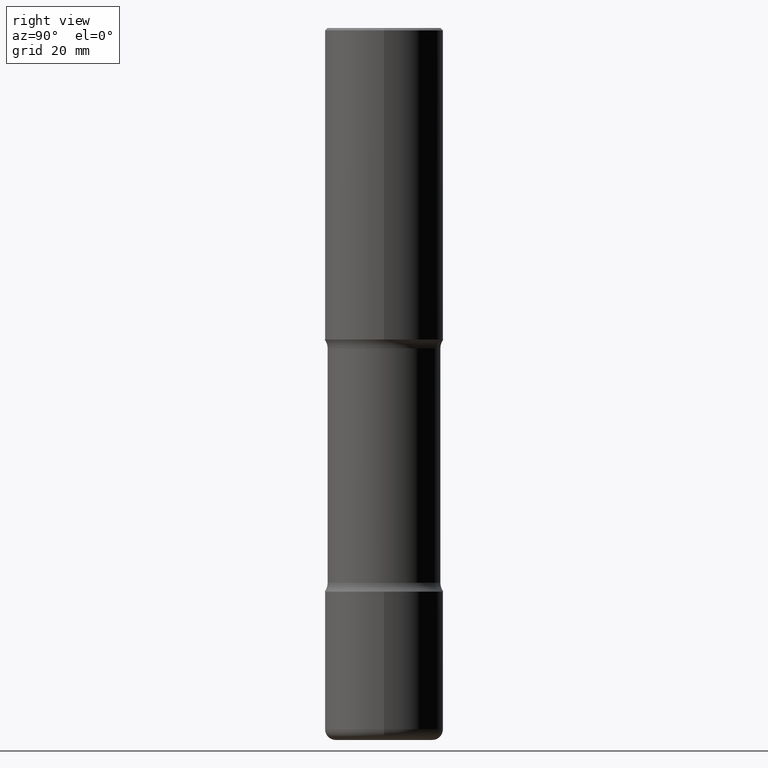
[diagram: clean part render]
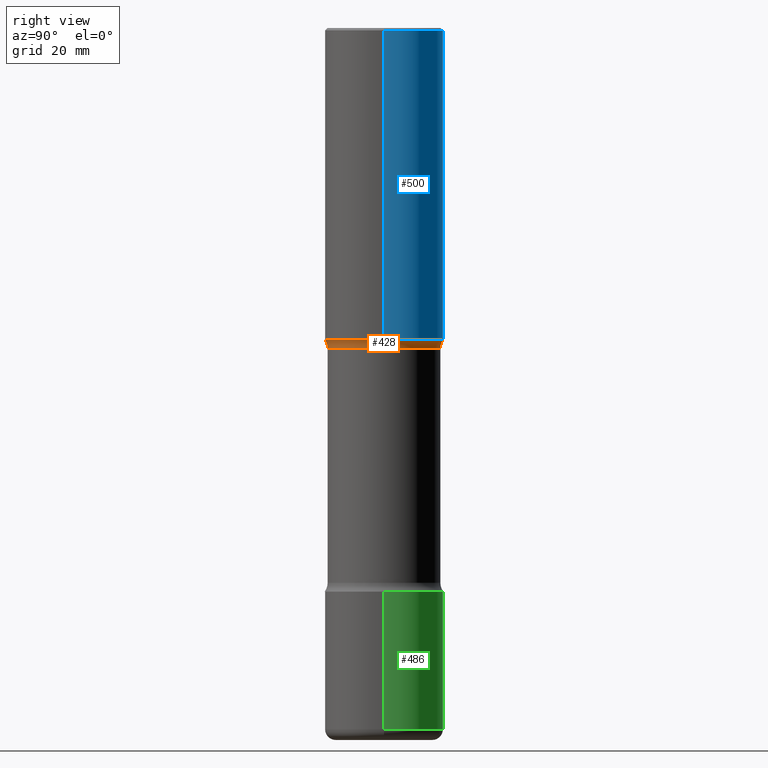
[diagram: same view with three faces highlighted in distinct colors, each labeled with its STEP entity id]
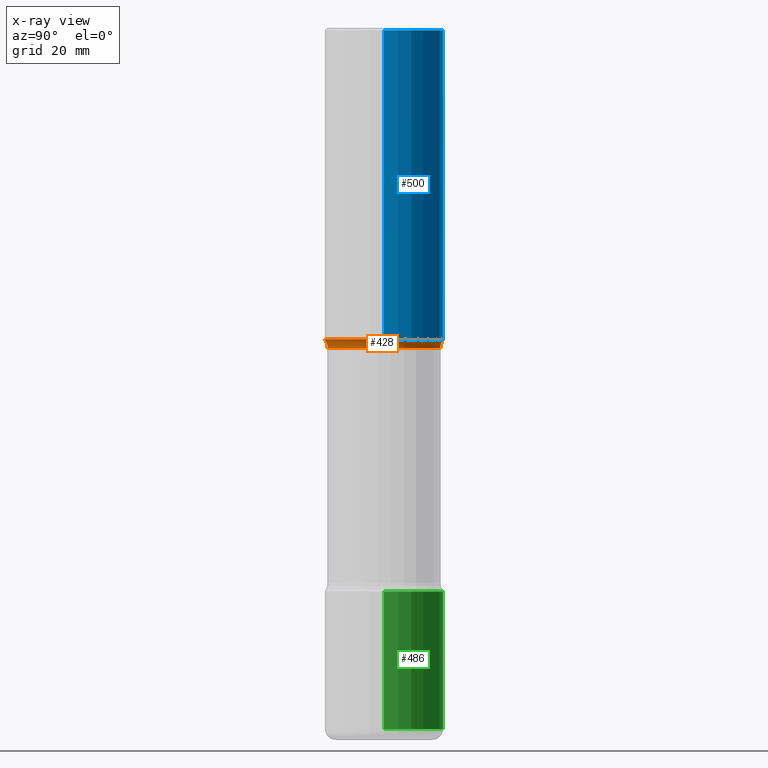
[diagram: x-ray of the same camera — body ghosted, the three highlighted faces saturated]
A machine part, right view with three faces highlighted in distinct colors.
The next image is the same camera in x-ray (body ghosted, the three faces saturated) — at least one of them is partly hidden behind the body in this view.
Their STEP definitions:

[orange] entity #428 — the highlighted toroidal blend (fillet) surface has major radius 15.24 mm and minor (blend) radius 3.175 mm.
#5 = VERTEX_POINT ( 'NONE', #531 ) ;
#37 = FACE_OUTER_BOUND ( 'NONE', #248, .T. ) ;
#48 = EDGE_CURVE ( 'NONE', #377, #5, #274, .T. ) ;
#80 = DIRECTION ( 'NONE',  ( 1.000000000000000000, -6.860497997771530774E-15, 4.842169013103094469E-29 ) ) ;
#82 = VERTEX_POINT ( 'NONE', #493 ) ;
#117 = CARTESIAN_POINT ( 'NONE',  ( -4.116298798662853620E-15, -0.6000000000000096367, -2.699999999999999734 ) ) ;
#135 = DIRECTION ( 'NONE',  ( 2.523594115079346016E-29, -3.379601449890201278E-15, -1.000000000000000000 ) ) ;
#162 = ORIENTED_EDGE ( 'NONE', *, *, #368, .T. ) ;
#190 = DIRECTION ( 'NONE',  ( 6.982962677686266711E-15, 1.000000000000000000, -3.278217592397112312E-15 ) ) ;
#199 = CARTESIAN_POINT ( 'NONE',  ( 6.459692832343351385E-29, -9.631888214401318406E-15, -2.700000000000001954 ) ) ;
#208 = DIRECTION ( 'NONE',  ( 6.982962677686265133E-15, 1.000000000000000000, -3.450755360418016739E-15 ) ) ;
#218 = AXIS2_PLACEMENT_3D ( 'NONE', #117, #80, #292 ) ;
#236 = CARTESIAN_POINT ( 'NONE',  ( 6.253339334835791142E-29, -9.402883278488267648E-15, -2.625000000000000888 ) ) ;
#246 = AXIS2_PLACEMENT_3D ( 'NONE', #485, #135, #208 ) ;
#248 = EDGE_LOOP ( 'NONE', ( #495, #503, #162, #443 ) ) ;
#274 = CIRCLE ( 'NONE', #329, 0.5000000000000005551 ) ;
#283 = CIRCLE ( 'NONE', #419, 0.1249999999999999584 ) ;
#292 = DIRECTION ( 'NONE',  ( 6.860497997771532351E-15, 1.000000000000000000, 0.000000000000000000 ) ) ;
#293 = CARTESIAN_POINT ( 'NONE',  ( 4.189777606611823924E-15, 0.5999999999999903189, -2.700000000000004174 ) ) ;
#301 = VERTEX_POINT ( 'NONE', #514 ) ;
#323 = DIRECTION ( 'NONE',  ( 2.523594115079346016E-29, -3.379601449890201278E-15, -1.000000000000000000 ) ) ;
#329 = AXIS2_PLACEMENT_3D ( 'NONE', #236, #323, #190 ) ;
#330 = AXIS2_PLACEMENT_3D ( 'NONE', #199, #381, #340 ) ;
#340 = DIRECTION ( 'NONE',  ( 6.982962677686265133E-15, 1.000000000000000000, -3.379601449890201672E-15 ) ) ;
#359 = CIRCLE ( 'NONE', #246, 0.4749999999999999778 ) ;
#361 = DIRECTION ( 'NONE',  ( -6.982962677686265133E-15, -1.000000000000000000, 0.000000000000000000 ) ) ;
#368 = EDGE_CURVE ( 'NONE', #82, #377, #283, .T. ) ;
#377 = VERTEX_POINT ( 'NONE', #473 ) ;
#381 = DIRECTION ( 'NONE',  ( 2.523594115079346016E-29, -3.379601449890201278E-15, -1.000000000000000000 ) ) ;
#419 = AXIS2_PLACEMENT_3D ( 'NONE', #293, #471, #361 ) ;
#422 = EDGE_CURVE ( 'NONE', #82, #301, #359, .T. ) ;
#428 = ADVANCED_FACE ( 'NONE', ( #37 ), #497, .F. ) ;
#443 = ORIENTED_EDGE ( 'NONE', *, *, #48, .T. ) ;
#462 = CIRCLE ( 'NONE', #218, 0.1249999999999999584 ) ;
#471 = DIRECTION ( 'NONE',  ( -1.000000000000000000, 6.982962677686265922E-15, -4.883557194083112340E-29 ) ) ;
#473 = CARTESIAN_POINT ( 'NONE',  ( 3.491481338843199225E-15, 0.4999999999999911182, -2.625000000000002665 ) ) ;
#485 = CARTESIAN_POINT ( 'NONE',  ( 6.442608893466743677E-29, -9.656353387230035032E-15, -2.700000000000001954 ) ) ;
#493 = CARTESIAN_POINT ( 'NONE',  ( 3.316907271901040585E-15, 0.4749999999999903744, -2.700000000000003286 ) ) ;
#495 = ORIENTED_EDGE ( 'NONE', *, *, #496, .F. ) ;
#496 = EDGE_CURVE ( 'NONE', #301, #5, #462, .T. ) ;
#497 = TOROIDAL_SURFACE ( 'NONE', #330, 0.5999999999999999778, 0.1249999999999999584 ) ;
#503 = ORIENTED_EDGE ( 'NONE', *, *, #422, .F. ) ;
#514 = CARTESIAN_POINT ( 'NONE',  ( -3.344492773913559396E-15, -0.4750000000000096367, -2.700000000000000178 ) ) ;
#531 = CARTESIAN_POINT ( 'NONE',  ( -3.430248998885706617E-15, -0.5000000000000099920, -2.624999999999999556 ) ) ;

[blue] entity #500 — the highlighted cylindrical surface (partial cylindrical patch) has radius 12.7 mm, axis along (-0, 0, 1).
#11 = VECTOR ( 'NONE', #216, 39.37007874015748143 ) ;
#21 = EDGE_CURVE ( 'NONE', #320, #239, #315, .T. ) ;
#36 = DIRECTION ( 'NONE',  ( 1.000000000000000000, -6.982962677686264344E-15, 0.000000000000000000 ) ) ;
#51 = VERTEX_POINT ( 'NONE', #74 ) ;
#53 = CARTESIAN_POINT ( 'NONE',  ( -0.5000000000000002220, 3.552713678800502507E-15, -2.459467545127454012E-29 ) ) ;
#74 = CARTESIAN_POINT ( 'NONE',  ( 0.5000000000000004441, -1.265661985330638997E-14, -2.624999999999999556 ) ) ;
#79 = ORIENTED_EDGE ( 'NONE', *, *, #342, .T. ) ;
#116 = DIRECTION ( 'NONE',  ( -2.445468806185136597E-29, 3.491481338843145583E-15, 1.000000000000000000 ) ) ;
#129 = ORIENTED_EDGE ( 'NONE', *, *, #157, .T. ) ;
#130 = CARTESIAN_POINT ( 'NONE',  ( 0.000000000000000000, 0.000000000000000000, 0.000000000000000000 ) ) ;
#132 = EDGE_LOOP ( 'NONE', ( #129, #79, #148, #287 ) ) ;
#148 = ORIENTED_EDGE ( 'NONE', *, *, #21, .F. ) ;
#157 = EDGE_CURVE ( 'NONE', #51, #433, #409, .T. ) ;
#165 = LINE ( 'NONE', #53, #11 ) ;
#184 = EDGE_CURVE ( 'NONE', #51, #320, #296, .T. ) ;
#213 = CARTESIAN_POINT ( 'NONE',  ( -0.5000000000000004441, -1.064770391819553504E-15, -2.624999999999999556 ) ) ;
#216 = DIRECTION ( 'NONE',  ( -2.445468806185136877E-29, 3.491481338843145188E-15, 1.000000000000000000 ) ) ;
#239 = VERTEX_POINT ( 'NONE', #448 ) ;
#250 = CARTESIAN_POINT ( 'NONE',  ( 0.5000000000000002220, -3.491481338843134933E-15, 2.438088387897969017E-29 ) ) ;
#287 = ORIENTED_EDGE ( 'NONE', *, *, #184, .F. ) ;
#296 = LINE ( 'NONE', #250, #347 ) ;
#297 = CYLINDRICAL_SURFACE ( 'NONE', #474, 0.5000000000000002220 ) ;
#304 = CARTESIAN_POINT ( 'NONE',  ( 0.5000000000000000000, -3.500078625662629079E-15, -0.02000000000000010103 ) ) ;
#309 = AXIS2_PLACEMENT_3D ( 'NONE', #548, #325, #542 ) ;
#315 = CIRCLE ( 'NONE', #309, 0.5000000000000000000 ) ;
#320 = VERTEX_POINT ( 'NONE', #304 ) ;
#325 = DIRECTION ( 'NONE',  ( -2.445468806185136597E-29, 3.491481338843145583E-15, 1.000000000000000000 ) ) ;
#342 = EDGE_CURVE ( 'NONE', #433, #239, #165, .T. ) ;
#347 = VECTOR ( 'NONE', #434, 39.37007874015748143 ) ;
#376 = CARTESIAN_POINT ( 'NONE',  ( 6.419355616235982445E-29, -9.165138514463255034E-15, -2.624999999999999556 ) ) ;
#399 = FACE_OUTER_BOUND ( 'NONE', #132, .T. ) ;
#409 = CIRCLE ( 'NONE', #516, 0.5000000000000004441 ) ;
#433 = VERTEX_POINT ( 'NONE', #213 ) ;
#434 = DIRECTION ( 'NONE',  ( -2.445468806185136877E-29, 3.491481338843145188E-15, 1.000000000000000000 ) ) ;
#435 = DIRECTION ( 'NONE',  ( 1.000000000000000000, -6.982962677686266711E-15, 4.876176775795935793E-29 ) ) ;
#448 = CARTESIAN_POINT ( 'NONE',  ( -0.5000000000000000000, 3.421651712066270057E-15, -0.02000000000000010103 ) ) ;
#474 = AXIS2_PLACEMENT_3D ( 'NONE', #130, #512, #435 ) ;
#500 = ADVANCED_FACE ( 'NONE', ( #399 ), #297, .T. ) ;
#512 = DIRECTION ( 'NONE',  ( -2.445468806185136597E-29, 3.491481338843145583E-15, 1.000000000000000000 ) ) ;
#516 = AXIS2_PLACEMENT_3D ( 'NONE', #376, #116, #36 ) ;
#542 = DIRECTION ( 'NONE',  ( 1.000000000000000000, -6.982962677686266711E-15, 0.000000000000000000 ) ) ;
#548 = CARTESIAN_POINT ( 'NONE',  ( 4.890937612370298557E-31, -6.982962677686327354E-17, -0.02000000000000010103 ) ) ;

[green] entity #486 — the highlighted cylindrical surface (partial cylindrical patch) has radius 12.7 mm, axis along (-0, 0, 1).
#6 = DIRECTION ( 'NONE',  ( -2.445468806185136597E-29, 3.491481338843145583E-15, 1.000000000000000000 ) ) ;
#41 = VERTEX_POINT ( 'NONE', #72 ) ;
#72 = CARTESIAN_POINT ( 'NONE',  ( 0.5000000000000002220, -2.007601769834807990E-14, -4.750000000000000888 ) ) ;
#75 = VERTEX_POINT ( 'NONE', #280 ) ;
#94 = DIRECTION ( 'NONE',  ( -2.445468806185136877E-29, 3.491481338843145188E-15, 1.000000000000000000 ) ) ;
#96 = CARTESIAN_POINT ( 'NONE',  ( -0.5000000000000004441, 3.552713678800504085E-15, -2.459467545127455133E-29 ) ) ;
#111 = AXIS2_PLACEMENT_3D ( 'NONE', #355, #6, #163 ) ;
#118 = DIRECTION ( 'NONE',  ( 1.000000000000000000, -6.982962677686264344E-15, 0.000000000000000000 ) ) ;
#119 = EDGE_LOOP ( 'NONE', ( #461, #192, #423, #288 ) ) ;
#131 = DIRECTION ( 'NONE',  ( 1.000000000000000000, -6.982962677686267499E-15, 0.000000000000000000 ) ) ;
#161 = CIRCLE ( 'NONE', #270, 0.5000000000000002220 ) ;
#163 = DIRECTION ( 'NONE',  ( 1.000000000000000000, -6.982962677686266711E-15, 4.876176775795935232E-29 ) ) ;
#192 = ORIENTED_EDGE ( 'NONE', *, *, #326, .T. ) ;
#222 = CARTESIAN_POINT ( 'NONE',  ( 1.445272064455415343E-28, -2.063465471256298629E-14, -5.909999999999999254 ) ) ;
#224 = VECTOR ( 'NONE', #264, 39.37007874015748143 ) ;
#264 = DIRECTION ( 'NONE',  ( -2.445468806185136877E-29, 3.491481338843145188E-15, 1.000000000000000000 ) ) ;
#270 = AXIS2_PLACEMENT_3D ( 'NONE', #349, #290, #131 ) ;
#280 = CARTESIAN_POINT ( 'NONE',  ( 0.5000000000000002220, -2.412613605140612280E-14, -5.909999999999999254 ) ) ;
#281 = VERTEX_POINT ( 'NONE', #308 ) ;
#286 = EDGE_CURVE ( 'NONE', #75, #41, #482, .T. ) ;
#288 = ORIENTED_EDGE ( 'NONE', *, *, #286, .F. ) ;
#290 = DIRECTION ( 'NONE',  ( -2.445468806185136597E-29, 3.491481338843145583E-15, 1.000000000000000000 ) ) ;
#302 = EDGE_CURVE ( 'NONE', #41, #281, #161, .T. ) ;
#308 = CARTESIAN_POINT ( 'NONE',  ( -0.5000000000000002220, -1.505688185723346233E-14, -4.750000000000000888 ) ) ;
#310 = CIRCLE ( 'NONE', #394, 0.5000000000000004441 ) ;
#316 = VECTOR ( 'NONE', #94, 39.37007874015748143 ) ;
#326 = EDGE_CURVE ( 'NONE', #464, #281, #468, .T. ) ;
#345 = CYLINDRICAL_SURFACE ( 'NONE', #111, 0.5000000000000004441 ) ;
#349 = CARTESIAN_POINT ( 'NONE',  ( 1.161597682937940108E-28, -1.658453635950494339E-14, -4.750000000000000888 ) ) ;
#355 = CARTESIAN_POINT ( 'NONE',  ( 0.000000000000000000, 0.000000000000000000, 0.000000000000000000 ) ) ;
#367 = EDGE_CURVE ( 'NONE', #75, #464, #310, .T. ) ;
#385 = FACE_OUTER_BOUND ( 'NONE', #119, .T. ) ;
#394 = AXIS2_PLACEMENT_3D ( 'NONE', #222, #400, #118 ) ;
#400 = DIRECTION ( 'NONE',  ( -2.445468806185136597E-29, 3.491481338843145583E-15, 1.000000000000000000 ) ) ;
#423 = ORIENTED_EDGE ( 'NONE', *, *, #302, .F. ) ;
#461 = ORIENTED_EDGE ( 'NONE', *, *, #367, .T. ) ;
#464 = VERTEX_POINT ( 'NONE', #475 ) ;
#468 = LINE ( 'NONE', #96, #316 ) ;
#475 = CARTESIAN_POINT ( 'NONE',  ( -0.5000000000000002220, -1.708194103376247905E-14, -5.909999999999999254 ) ) ;
#482 = LINE ( 'NONE', #560, #224 ) ;
#486 = ADVANCED_FACE ( 'NONE', ( #385 ), #345, .T. ) ;
#560 = CARTESIAN_POINT ( 'NONE',  ( 0.5000000000000004441, -3.491481338843136511E-15, 2.438088387897969858E-29 ) ) ;